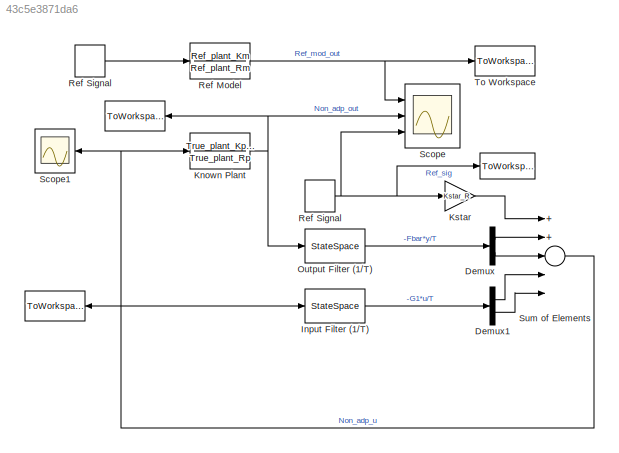
MODEL slx_43c5e3871da6
KIND model
CONFIG AbsTol = auto
CONFIG EnableMultiTasking = off
CONFIG FixedStep = auto
CONFIG MaxStep = auto
CONFIG MinStep = auto
CONFIG RelTol = 1e-3
CONFIG SampleTimeConstraint = Unconstrained
CONFIG Solver = VariableStepAuto
CONFIG SolverName = VariableStepAuto
CONFIG StartTime = 0.0
CONFIG StopTime = 2
BLOCK [ToWorkspace]  
  Decimation = 3
  FixptAsFi = on
  MaxDataPoints = inf
  Ports = [1]
  SampleTime = 0.0001
  Save2DSignal = 3-D array (concatenate along third dimension)
  SaveFormat = Timeseries
  VariableName = Non_adp_out
BLOCK [ToWorkspace]   
  Decimation = 3
  FixptAsFi = on
  MaxDataPoints = inf
  Ports = [1]
  SampleTime = 0.0001
  Save2DSignal = 3-D array (concatenate along third dimension)
  SaveFormat = Timeseries
  VariableName = Ref_signal
BLOCK [ToWorkspace]      
  Decimation = 3
  FixptAsFi = on
  MaxDataPoints = inf
  Ports = [1]
  SampleTime = 0.0001
  Save2DSignal = 3-D array (concatenate along third dimension)
  SaveFormat = Timeseries
  VariableName = Non_adp_u
BLOCK [Demux] Demux
  DisplayOption = bar
  Outputs = 2
  Ports = [1, 2]
BLOCK [Demux] Demux1
  DisplayOption = bar
  Outputs = 2
  Ports = [1, 2]
BLOCK [StateSpace] Input Filter (1//T)
  A = AT_filt_U
  B = BT_filt_U
  C = CT_filt_U
  D = [0;0]
  InitialCondition = 0
  Ports = [1, 1]
BLOCK [TransferFcn] Known Plant
  Denominator = True_plant_Rp
  Numerator = True_plant_Kp*True_plant_Zp
BLOCK [Gain] Kstar
  Gain = Kstar_R
  OutDataTypeStr = Inherit: Inherit via internal rule
  ParamDataTypeStr = Inherit: Inherit via internal rule
  SaturateOnIntegerOverflow = off
BLOCK [StateSpace] Output Filter (1//T)
  A = AT_filt_Y
  B = BT_filt_Y
  C = CT_filt_Y
  D = [0;0]
  InitialCondition = 0
  Ports = [1, 1]
BLOCK [TransferFcn] Ref Model
  Denominator = Ref_plant_Rm
  Numerator = Ref_plant_Km
BLOCK [DiscretePulseGenerator] Ref Signal
  Period = 1
  Ports = [0, 1]
  PulseType = Time based
  PulseWidth = 50
BLOCK [DiscretePulseGenerator] Ref Signal 
  Period = 1
  Ports = [0, 1]
  PulseType = Time based
  PulseWidth = 50
BLOCK [Scope] Scope
  Floating = off
  NumInputPorts = 3
  Ports = [3]
  ScopeSpecificationString = Simulink.scopes.TimeScopeBlockCfg('CurrentConfiguration', extmgr.ConfigurationSet(extmgr.Configuration('Core','General UI',true),extmgr.Configuration('Core','Source UI',true),extmgr.Configuration('Sources','WiredSimulink',true),extmgr.Configuration('Visuals','Time Domain',true,'SerializedDisplays',{struct('MinYLimReal','-0.125','MaxYLimReal','1.125','YLabelReal','','MinYLimMag','0.00000','MaxYLimM...<+1412ch>
BLOCK [Scope] Scope1
  Floating = off
  NumInputPorts = 1
  Ports = [1]
  ScopeSpecificationString = Simulink.scopes.TimeScopeBlockCfg('CurrentConfiguration', extmgr.ConfigurationSet(extmgr.Configuration('Core','General UI',true),extmgr.Configuration('Core','Source UI',true),extmgr.Configuration('Sources','WiredSimulink',true,'DataLoggingVariableName','ScopeData1'),extmgr.Configuration('Visuals','Time Domain',true,'SerializedDisplays',{struct('MinYLimReal','-1252.04535','MaxYLimReal','1248.52746'...<+1440ch>
BLOCK [Sum] Sum of Elements
  InputSameDT = off
  Inputs = 5
  OutDataTypeStr = Inherit: Inherit via internal rule
  Ports = [5, 1]
  SaturateOnIntegerOverflow = off
BLOCK [ToWorkspace] To Workspace
  Decimation = 3
  FixptAsFi = on
  MaxDataPoints = inf
  Ports = [1]
  SampleTime = 0.0001
  Save2DSignal = 3-D array (concatenate along third dimension)
  SaveFormat = Timeseries
  VariableName = Ref_mod_out
LINE Demux1:1 -> Sum of Elements:4
LINE Demux1:2 -> Sum of Elements:5
LINE Demux:1 -> Sum of Elements:2
LINE Demux:2 -> Sum of Elements:3
LINE Input Filter (1//T):1 -> Demux1:1
NET Known Plant:1 ->  :1, Output Filter (1//T):1, Scope:2
LINE Kstar:1 -> Sum of Elements:1
LINE Output Filter (1//T):1 -> Demux:1
NET Ref Model:1 -> Scope:1, To Workspace:1
LINE Ref Signal :1 -> Ref Model:1
NET Ref Signal:1 ->   :1, Kstar:1, Scope:3
NET Sum of Elements:1 ->      :1, Input Filter (1//T):1, Known Plant:1, Scope1:1
note: NET lines group one-source signal fan-out (src -> all destinations, sorted); 1:1 wires keep LINE
